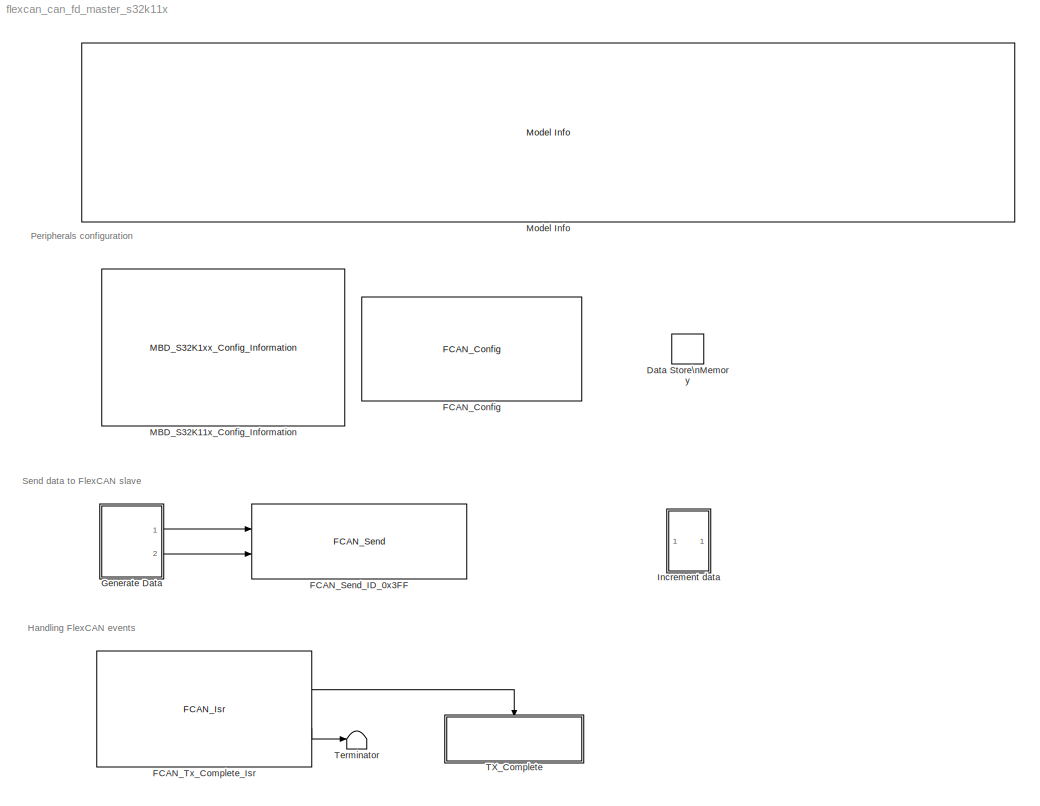
MODEL flexcan_can_fd_master_s32k11x
KIND model
CONFIG InitFcn = mbd_s32k_consistency_checks(bdroot(gcs));
BLOCK [DataStoreMemory] Data Store\nMemory
  DataStoreName = data
  OutDataTypeStr = uint8
  ReadBeforeWriteMsg = warning
  SID = 254
  ShowAdditionalParam = off
  WriteAfterReadMsg = warning
  WriteAfterWriteMsg = warning
BLOCK [Reference] FCAN_Config  REF=mbd_s32k1xx_ec_toolbox/Communication Blocks/CAN Blocks/FCAN_Config
  Ports = []
  Priority = 1
  SID = 2
  SourceBlock = mbd_s32k1xx_ec_toolbox/Communication Blocks/CAN Blocks/FCAN_Config
  SourceType = fcan_s32k_config
  bitrate = 500
  bitrate_adv_opts = off
  can_cbt_presdiv = 1
  can_cbt_propseg = 27
  can_cbt_pseg1 = 5
  can_cbt_pseg2 = 5
  can_cbt_rjw = 3
  can_clk_src = Peripheral clock
  can_fd_enable = on
  can_fifo_id_filter = {'0x0', '0x0', '0x0', '0x0', '0x0', '0x0', '0x0', '0x0'}
  can_fifo_id_filter_extended = off
  can_fifo_id_filter_remote = off
  can_fifo_id_format = A
  can_idfilter_extendedid = off
  can_idfilter_id1 = 0
  can_idfilter_id2 = 0
  can_idfilter_remoteframe = off
  can_idfilter_type = Match exact
  can_instance = 0
  can_match_timeout = 1
  can_max_num_mb = 16
  can_mode = Normal mode
  can_multiple_matches_en = off
  can_num_id_filters = 8
  can_num_matches = 1
  can_payload = 8
  can_payloadfilter_dlchigh = 0
  can_payloadfilter_dlclow = 0
  can_payloadfilter_enable = off
  can_payloadfilter_payload1_b0 = 0
  can_payloadfilter_payload1_b1 = 0
  can_payloadfilter_payload1_b2 = 0
  can_payloadfilter_payload1_b3 = 0
  can_payloadfilter_payload1_b4 = 0
  can_payloadfilter_payload1_b5 = 0
  can_payloadfilter_payload1_b6 = 0
  can_payloadfilter_payload1_b7 = 0
  can_payloadfilter_payload2_b0 = 0
  can_payloadfilter_payload2_b1 = 0
  can_payloadfilter_payload2_b2 = 0
  can_payloadfilter_payload2_b3 = 0
  can_payloadfilter_payload2_b4 = 0
  can_payloadfilter_payload2_b5 = 0
  can_payloadfilter_payload2_b6 = 0
  can_payloadfilter_payload2_b7 = 0
  can_payloadfilter_type = Match exact
  can_pn_enable = off
  can_presdiv = 3
  can_propseg = 7
  can_pseg1 = 6
  can_pseg2 = 3
  can_rjw = 3
  can_rx = PTE4: [CAN0_RX | CAN Rx channel]
  can_rxfifo_enable = off
  can_timeout_en = off
  can_tx = PTE5: [CAN0_TX | CAN Tx Channel]
  can_wakeup_match = off
  can_wakeup_timeout = off
  show_adv_opts = on
BLOCK [Reference] FCAN_Send_ID_0x3FF  REF=mbd_s32k1xx_ec_toolbox/Communication Blocks/CAN Blocks/FCAN_Send
  Ports = [2]
  Priority = 2
  SID = 212
  SourceBlock = mbd_s32k1xx_ec_toolbox/Communication Blocks/CAN Blocks/FCAN_Send
  SourceType = fcan_s32k_send
  can_enable_brs = off
  can_extended_id = off
  can_fd_enable = on
  can_fd_padding = 0
  can_id = 3FF
  can_instance = 0
  can_is_remote = off
  can_mb_idx = 15
  can_mode = Non-blocking
  can_timeout_ms = 0
  show_adv_opts = on
BLOCK [Reference] FCAN_Tx_Complete_Isr  REF=mbd_s32k1xx_ec_toolbox/Communication Blocks/CAN Blocks/FCAN_Isr
  Ports = [0, 2]
  SID = 86
  SourceBlock = mbd_s32k1xx_ec_toolbox/Communication Blocks/CAN Blocks/FCAN_Isr
  SourceType = fcan_s32k_isr
  can_event = Tx Complete
  can_instance = 0
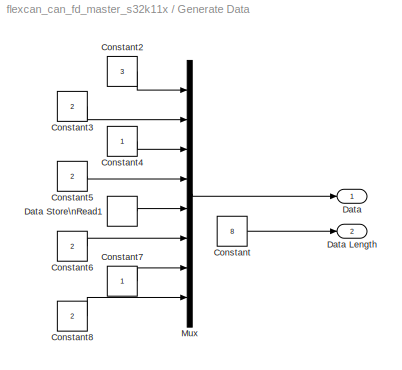
BLOCK [SubSystem] Generate Data
  Ports = [0, 2]
  RequestExecContextInheritance = off
  SID = 240
  Variant = off
BLOCK [Constant] Generate Data/Constant
  OutDataTypeStr = uint8
  SID = 203
  Value = 8
BLOCK [Constant] Generate Data/Constant2
  OutDataTypeStr = uint8
  SID = 204
  Value = 3
BLOCK [Constant] Generate Data/Constant3
  OutDataTypeStr = uint8
  SID = 205
  Value = 2
BLOCK [Constant] Generate Data/Constant4
  OutDataTypeStr = uint8
  SID = 206
BLOCK [Constant] Generate Data/Constant5
  OutDataTypeStr = uint8
  SID = 207
  Value = 2
BLOCK [Constant] Generate Data/Constant6
  OutDataTypeStr = uint8
  SID = 208
  Value = 2
BLOCK [Constant] Generate Data/Constant7
  OutDataTypeStr = uint8
  SID = 209
BLOCK [Constant] Generate Data/Constant8
  OutDataTypeStr = uint8
  SID = 210
  Value = 2
BLOCK [Outport] Generate Data/Data
  IconDisplay = Port number
  SID = 241
BLOCK [Outport] Generate Data/Data Length
  IconDisplay = Port number
  Port = 2
  SID = 242
BLOCK [DataStoreRead] Generate Data/Data Store\nRead1
  DataStoreName = data
  Ports = [0, 1]
  SID = 260
BLOCK [Mux] Generate Data/Mux
  DisplayOption = bar
  Inputs = 8
  Ports = [8, 1]
  SID = 213
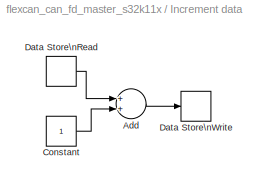
BLOCK [SubSystem] Increment data
  Ports = []
  RequestExecContextInheritance = off
  SID = 261
  Variant = off
BLOCK [Sum] Increment data/Add
  InputSameDT = off
  OutDataTypeStr = Inherit: Inherit via internal rule
  Ports = [2, 1]
  SID = 258
  SaturateOnIntegerOverflow = off
BLOCK [Constant] Increment data/Constant
  OutDataTypeStr = uint8
  SID = 257
BLOCK [DataStoreRead] Increment data/Data Store\nRead
  DataStoreName = data
  Ports = [0, 1]
  SID = 255
BLOCK [DataStoreWrite] Increment data/Data Store\nWrite
  DataStoreName = data
  Ports = [1]
  SID = 256
BLOCK [Reference] MBD_S32K11x_Config_Information  REF=mbd_s32k1xx_ec_toolbox/MBD_S32K1xx_Config_Information
  ADC_PcrCheckEnDis = on
  AMMCLIB_PcrCheckEnDis = on
  CMP_PcrCheckEnDis = on
  CSEc_PcrCheckEnDis = on
  ConfigParams_PcrCheckEnDis = on
  FM_PcrCheckEnDis = on
  FTM_Dual_Edge_Inputs_PcrCheckEnDis = on
  FTM_Hall_Sensor_Inputs_PcrCheckEnDis = on
  FTM_Input_Edge_Inputs_PcrCheckEnDis = on
  FTM_PWM_PcrCheckEnDis = on
  FTM_Quadrature_Inputs_PcrCheckEnDis = on
  FlexCAN_PcrCheckEnDis = on
  FlexIO_PcrCheckEnDis = on
  GPIO_InputPcrCheckEnDis = on
  GPIO_OutputPcrCheckEnDis = on
  LIN_PcrCheckEnDis = on
  LPI2C_PcrCheckEnDis = on
  LPSPI_PcrCheckEnDis = on
  LPTMR_PcrCheckEnDis = on
  LPUART_PcrCheckEnDis = on
  ModelRef_PcrCheckEnDis = on
  PDB0_PcrCheckEnDis = on
  PIT_PcrCheckEnDis = on
  Ports = []
  Profile_PcrCheckEnDis = on
  RTC_PcrCheckEnDis = on
  SBC_PcrCheckEnDis = on
  SID = 253
  SourceBlock = mbd_s32k1xx_ec_toolbox/MBD_S32K1xx_Config_Information
  SourceType = MBDTBX_EC_S32K
  WDOG_PcrCheckEnDis = on
  config_params = []
  disp_str = Target : S32K144-64KB_SRAM\nPackage : 100-pin\nSystem clock : 80 MHz\nXTAL clock : External 8 MHz\nCompiler : IAR\nTarget Type : FLASH\nDownload Code after build : off\nStep Tick Interrupt Priority : 15
  ds_import_enable = on
  eDMA_PcrCheckEnDis = on
  gcc_target_assemble_opts = -mcpu=cortex-m0plus -mthumb -g
  gcc_target_compile_opts = -mcpu=cortex-m0plus -mthumb -O1 -g -gstrict-dwarf
  gcc_target_default_lcf = on
  gcc_target_link_opts = -mcpu=cortex-m0plus -mthumb
  gcc_target_user_lcf = S32K116_17_flash.ld
  ghs_target_assemble_opts = -thumb -preprocess_assembly_files -fsoft --gnu_asm
  ghs_target_compile_opts = -thumb -Ogeneral -Wundef -Wimplicit-int -Wshadow -Wtrigraphs --no_commons --gnu_asm -gdwarf-2 -G  -c99
  ghs_target_default_lcf = on
  ghs_target_link_opts = -thumb
  ghs_target_user_lcf = S32K116_17_flash.ld
  iar_target_assemble_opts = --thumb
  iar_target_compile_opts = --thumb -Ol -e --debug --dlib_config normal
  iar_target_default_lcf = on
  iar_target_link_opts = --no_exceptions --vfe --inline
  iar_target_user_lcf = S32K116_17_flash.icf
  mbdt_ver = 0
  mcu_steptick_prio = 3
  mcu_steptick_timer = LPIT Channel 0
  mcu_system_clock_freq = 40
  mcu_target_name = S32K116
  mcu_target_package = 48-LQFP
  mcu_target_sram_size = 17KB
  mcu_xtal_freq = External 40
  pil_download_enable = off
  pil_download_rate = 57600
  pil_opensda_drive = Custom
  pil_opensda_drive_custom = D
  pil_uart_instance = 0
  pil_uart_rx = PTB0: [LPUART0_RX | Receive]
  pil_uart_tx = PTB1: [LPUART0_TX | Transmit]
  rbl_com_port = Custom
  rbl_com_port_custom = COM1
  rbl_download_enable = on
  rbl_download_interface = OpenSDA
  rbl_restart_request = off
  rbl_start_delay = 5000
  target_compiler = GCC
  target_memory = FLASH
BLOCK [Reference] Model Info  REF=simulink/Model-Wide\nUtilities/Model Info
  DisplayStringWithTags = Model Name: %<ModelName>\n\nDescription: %<Description>
  Frame = off
  HorizontalTextAlignment = Left
  LeftAlignmentValue = 0.02
  MaskDisplayString = Model Name: flexcan_can_fd_master_s32k11x\\n\\nDescription: This model tests FlexCAN communication using CAN with Flexible Data-Rate.\\nThe FlexCAN Master sends on each step a message with ID 0x3FF to the slave.\\nOn each Tx Complete event Blue LED  is toggled.\\n\\nHW prerequisite:\\n-S32K116EVB-Q048/S32K118EVB\\n- Make sure that J107 has pin 1 and 2 connected and external power supply is provied...<+172ch>
  Ports = []
  SID = 74
  SourceBlock = simulink/Model-Wide\nUtilities/Model Info
  SourceProductBaseCode = SL
  SourceProductName = Simulink
  SourceType = CMBlock
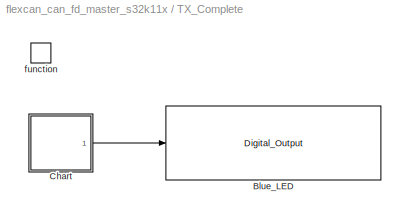
BLOCK [SubSystem] TX_Complete
  Ports = [0, 0, 0, 1]
  RTWSystemCode = Nonreusable function
  RequestExecContextInheritance = off
  SID = 110
  TreatAsAtomicUnit = on
  Variant = off
BLOCK [Reference] TX_Complete/Blue_LED  REF=mbd_s32k1xx_ec_toolbox/GPIO Blocks/Digital_Output
  Ports = [1]
  SID = 122
  SourceBlock = mbd_s32k1xx_ec_toolbox/GPIO Blocks/Digital_Output
  SourceType = gpio_s32k_output
  drive_strength = Low
  gpio_pin = PTE8: [PTE8 | Port E I/O]
  init_val = Low
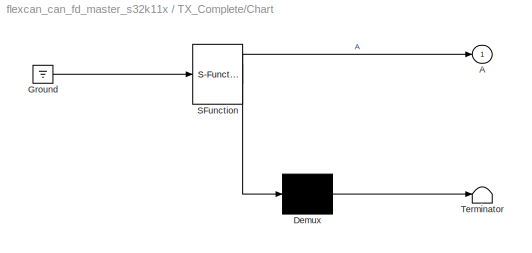
BLOCK [SubSystem] TX_Complete/Chart
  ErrorFcn = Stateflow.Translate.translate
  PermitHierarchicalResolution = ExplicitOnly
  Ports = [0, 1]
  RequestExecContextInheritance = off
  SFBlockType = Chart
  SID = 121
  TreatAsAtomicUnit = on
  Variant = off
BLOCK [Outport] TX_Complete/Chart/ A
  IconDisplay = Port number
  SID = 121::6
BLOCK [Demux] TX_Complete/Chart/ Demux 
  Outputs = 1
  Ports = [1, 1]
  SID = 121::36
BLOCK [Ground] TX_Complete/Chart/ Ground 
  SID = 121::38
BLOCK [S-Function] TX_Complete/Chart/ SFunction 
  EnableBusSupport = off
  FunctionName = sf_sfun
  PortCounts = [1 2]
  Ports = [1, 2]
  SFcnIsStateOwnerBlock = off
  SFunctionDeploymentMode = off
  SID = 121::35
  Tag = Stateflow S-Function flexcan_can_fd_master_s32k11x 5
BLOCK [Terminator] TX_Complete/Chart/ Terminator 
  SID = 121::37
BLOCK [TriggerPort] TX_Complete/function
  Ports = []
  SID = 112
  StatesWhenEnabling = held
  TriggerType = function-call
  VariantControl = Variant
BLOCK [Terminator] Terminator
  SID = 239
ANNOTATION (root): Handling FlexCAN events
ANNOTATION (root): Peripherals configuration
ANNOTATION (root): Send data to FlexCAN slave
LINE FCAN_Tx_Complete_Isr:1 -> TX_Complete:trigger
LINE FCAN_Tx_Complete_Isr:2 -> Terminator:1
LINE Generate Data/Constant2:1 -> Generate Data/Mux:1
LINE Generate Data/Constant3:1 -> Generate Data/Mux:2
LINE Generate Data/Constant4:1 -> Generate Data/Mux:3
LINE Generate Data/Constant5:1 -> Generate Data/Mux:4
LINE Generate Data/Constant6:1 -> Generate Data/Mux:6
LINE Generate Data/Constant7:1 -> Generate Data/Mux:7
LINE Generate Data/Constant8:1 -> Generate Data/Mux:8
LINE Generate Data/Constant:1 -> Generate Data/Data Length:1
LINE Generate Data/Data Store\nRead1:1 -> Generate Data/Mux:5
LINE Generate Data/Mux:1 -> Generate Data/Data:1
LINE Generate Data:1 -> FCAN_Send_ID_0x3FF:1
LINE Generate Data:2 -> FCAN_Send_ID_0x3FF:2
LINE Increment data/Add:1 -> Increment data/Data Store\nWrite:1
LINE Increment data/Constant:1 -> Increment data/Add:2
LINE Increment data/Data Store\nRead:1 -> Increment data/Add:1
LINE TX_Complete/Chart/ Demux :1 -> TX_Complete/Chart/ Terminator :1
LINE TX_Complete/Chart/ Ground :1 -> TX_Complete/Chart/ SFunction :1
LINE TX_Complete/Chart/ SFunction :1 -> TX_Complete/Chart/ Demux :1
LINE TX_Complete/Chart/ SFunction :2 -> TX_Complete/Chart/ A:1
LINE TX_Complete/Chart:1 -> TX_Complete/Blue_LED:1
CHART TX_Complete/Chart states=2 transitions=3
  STATE_LABEL 'A'
  STATE_LABEL 'A1'
